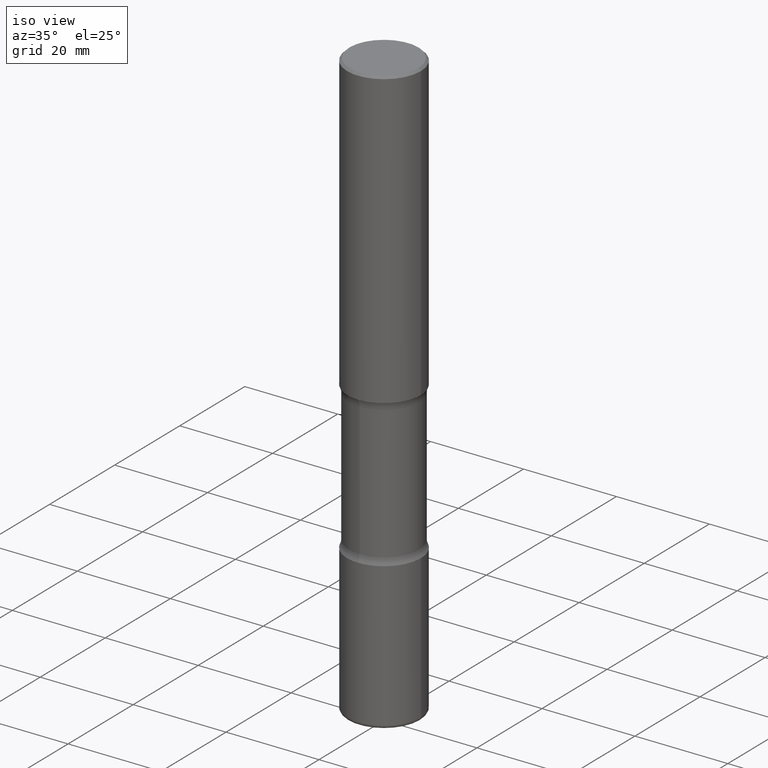
[diagram: clean part render]
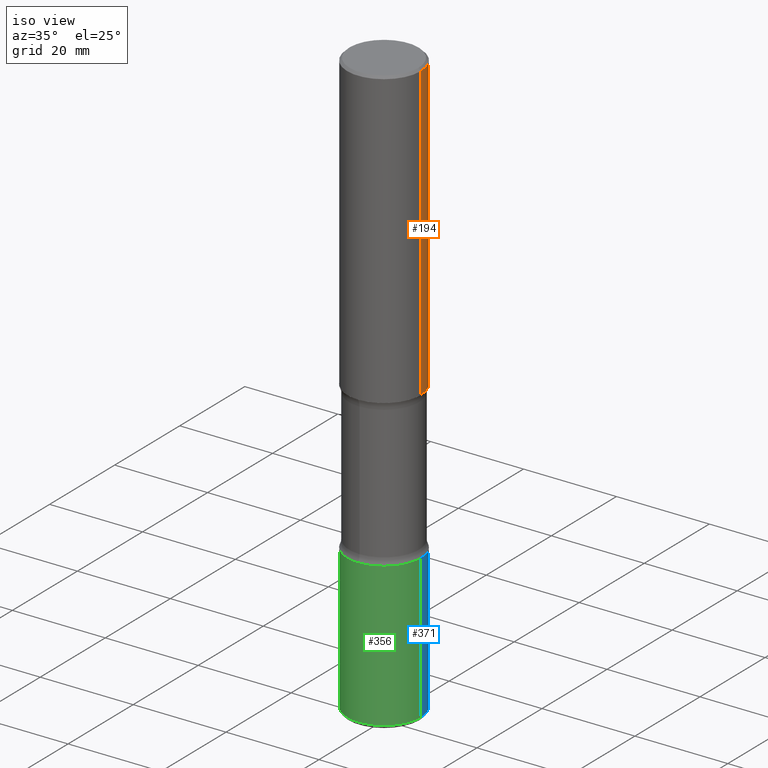
[diagram: same view with three faces highlighted in distinct colors, each labeled with its STEP entity id]
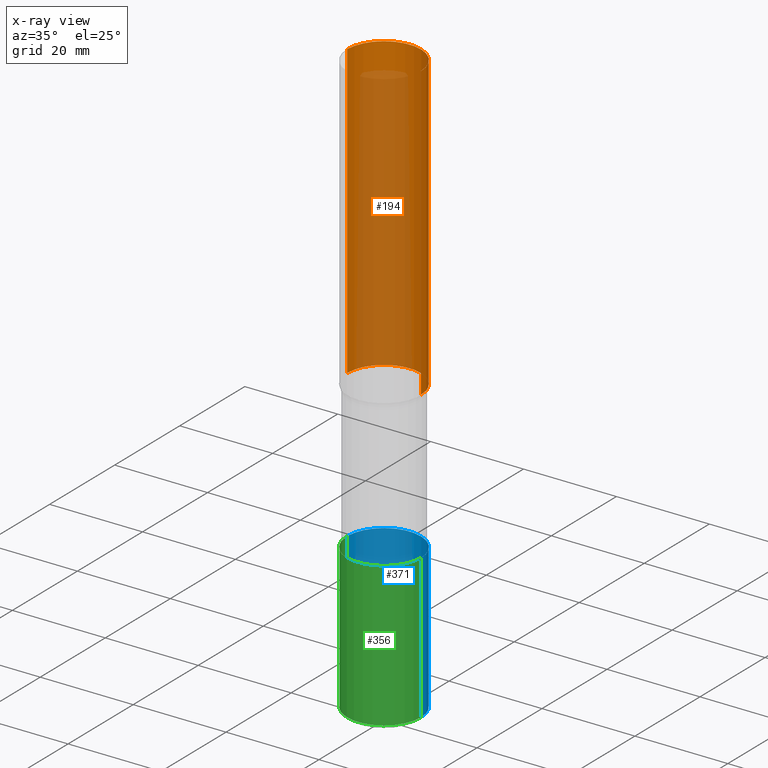
[diagram: x-ray of the same camera — body ghosted, the three highlighted faces saturated]
A machine part, iso view with three faces highlighted in distinct colors.
The next image is the same camera in x-ray (body ghosted, the three faces saturated) — at least one of them is partly hidden behind the body in this view.
Their STEP definitions:

[orange] entity #194 — the highlighted cylindrical surface (partial cylindrical patch) has radius 7.9375 mm, axis along (-0, 0, 1).
#7 = ORIENTED_EDGE ( 'NONE', *, *, #458, .F. ) ;
#16 = CARTESIAN_POINT ( 'NONE',  ( 0.3124999999999998890, -2.213735251080466123E-15, -0.02000000000000006981 ) ) ;
#32 = FACE_OUTER_BOUND ( 'NONE', #473, .T. ) ;
#34 = CARTESIAN_POINT ( 'NONE',  ( 0.000000000000000000, 0.000000000000000000, 0.000000000000000000 ) ) ;
#37 = VECTOR ( 'NONE', #305, 39.37007874015748143 ) ;
#43 = EDGE_CURVE ( 'NONE', #103, #52, #529, .T. ) ;
#52 = VERTEX_POINT ( 'NONE', #16 ) ;
#59 = CARTESIAN_POINT ( 'NONE',  ( -0.3125000000000002220, -2.178820437692046306E-15, -2.499999999999999556 ) ) ;
#93 = CARTESIAN_POINT ( 'NONE',  ( -0.3125000000000000000, 2.220446049250313081E-15, -1.537167215704658232E-29 ) ) ;
#103 = VERTEX_POINT ( 'NONE', #205 ) ;
#116 = AXIS2_PLACEMENT_3D ( 'NONE', #196, #153, #453 ) ;
#135 = AXIS2_PLACEMENT_3D ( 'NONE', #34, #203, #376 ) ;
#153 = DIRECTION ( 'NONE',  ( -2.445468806185136597E-29, 3.491481338843145583E-15, 1.000000000000000000 ) ) ;
#188 = ORIENTED_EDGE ( 'NONE', *, *, #43, .F. ) ;
#194 = ADVANCED_FACE ( 'NONE', ( #32 ), #334, .T. ) ;
#196 = CARTESIAN_POINT ( 'NONE',  ( 4.890937612370289799E-31, -6.982962677686315028E-17, -0.02000000000000006981 ) ) ;
#203 = DIRECTION ( 'NONE',  ( -2.445468806185136597E-29, 3.491481338843145583E-15, 1.000000000000000000 ) ) ;
#205 = CARTESIAN_POINT ( 'NONE',  ( 0.3125000000000002220, -1.091087918388482329E-14, -2.499999999999999556 ) ) ;
#230 = VERTEX_POINT ( 'NONE', #59 ) ;
#237 = CARTESIAN_POINT ( 'NONE',  ( 6.113672015462840371E-29, -8.728703347107863365E-15, -2.499999999999999556 ) ) ;
#263 = VECTOR ( 'NONE', #537, 39.37007874015748143 ) ;
#268 = EDGE_CURVE ( 'NONE', #230, #401, #353, .T. ) ;
#305 = DIRECTION ( 'NONE',  ( -2.445468806185136877E-29, 3.491481338843145188E-15, 1.000000000000000000 ) ) ;
#334 = CYLINDRICAL_SURFACE ( 'NONE', #135, 0.3125000000000000000 ) ;
#353 = LINE ( 'NONE', #93, #37 ) ;
#370 = CARTESIAN_POINT ( 'NONE',  ( 0.3125000000000000000, -2.182175836776958347E-15, 1.523805242436230075E-29 ) ) ;
#376 = DIRECTION ( 'NONE',  ( 1.000000000000000000, -6.982962677686266711E-15, 4.876176775795936353E-29 ) ) ;
#391 = CIRCLE ( 'NONE', #116, 0.3124999999999998890 ) ;
#401 = VERTEX_POINT ( 'NONE', #497 ) ;
#412 = DIRECTION ( 'NONE',  ( 1.000000000000000000, -6.982962677686266711E-15, 0.000000000000000000 ) ) ;
#431 = AXIS2_PLACEMENT_3D ( 'NONE', #237, #446, #412 ) ;
#446 = DIRECTION ( 'NONE',  ( -2.445468806185136597E-29, 3.491481338843145583E-15, 1.000000000000000000 ) ) ;
#453 = DIRECTION ( 'NONE',  ( 1.000000000000000000, -6.982962677686266711E-15, 0.000000000000000000 ) ) ;
#458 = EDGE_CURVE ( 'NONE', #52, #401, #391, .T. ) ;
#473 = EDGE_LOOP ( 'NONE', ( #476, #478, #7, #188 ) ) ;
#476 = ORIENTED_EDGE ( 'NONE', *, *, #488, .T. ) ;
#478 = ORIENTED_EDGE ( 'NONE', *, *, #268, .T. ) ;
#488 = EDGE_CURVE ( 'NONE', #103, #230, #547, .T. ) ;
#497 = CARTESIAN_POINT ( 'NONE',  ( -0.3124999999999998890, 2.112346210000094260E-15, -0.02000000000000006981 ) ) ;
#529 = LINE ( 'NONE', #370, #263 ) ;
#537 = DIRECTION ( 'NONE',  ( -2.445468806185136877E-29, 3.491481338843145188E-15, 1.000000000000000000 ) ) ;
#547 = CIRCLE ( 'NONE', #431, 0.3125000000000002220 ) ;

[blue] entity #371 — the highlighted cylindrical surface (partial cylindrical patch) has radius 7.9375 mm, axis along (-0, 0, 1).
#9 = EDGE_CURVE ( 'NONE', #425, #125, #460, .T. ) ;
#24 = EDGE_CURVE ( 'NONE', #520, #395, #144, .T. ) ;
#25 = DIRECTION ( 'NONE',  ( 1.000000000000000000, -6.982962677686266711E-15, 4.876176775795936353E-29 ) ) ;
#45 = ORIENTED_EDGE ( 'NONE', *, *, #9, .T. ) ;
#68 = CARTESIAN_POINT ( 'NONE',  ( 0.3125000000000007216, -1.953483809082739329E-14, -4.969999999999999751 ) ) ;
#119 = AXIS2_PLACEMENT_3D ( 'NONE', #496, #359, #318 ) ;
#125 = VERTEX_POINT ( 'NONE', #470 ) ;
#137 = LINE ( 'NONE', #350, #235 ) ;
#144 = CIRCLE ( 'NONE', #119, 0.3125000000000001665 ) ;
#150 = CARTESIAN_POINT ( 'NONE',  ( 0.000000000000000000, 0.000000000000000000, 0.000000000000000000 ) ) ;
#184 = EDGE_CURVE ( 'NONE', #125, #395, #519, .T. ) ;
#214 = DIRECTION ( 'NONE',  ( -2.445468806185136877E-29, 3.491481338843145188E-15, 1.000000000000000000 ) ) ;
#223 = EDGE_CURVE ( 'NONE', #425, #520, #137, .T. ) ;
#235 = VECTOR ( 'NONE', #315, 39.37007874015748143 ) ;
#239 = CARTESIAN_POINT ( 'NONE',  ( 0.3125000000000001665, -1.527523085743875418E-14, -3.749999999999999556 ) ) ;
#252 = VECTOR ( 'NONE', #214, 39.37007874015748143 ) ;
#262 = ORIENTED_EDGE ( 'NONE', *, *, #223, .F. ) ;
#276 = AXIS2_PLACEMENT_3D ( 'NONE', #326, #535, #447 ) ;
#307 = EDGE_LOOP ( 'NONE', ( #45, #393, #342, #262 ) ) ;
#315 = DIRECTION ( 'NONE',  ( -2.445468806185136877E-29, 3.491481338843145188E-15, 1.000000000000000000 ) ) ;
#318 = DIRECTION ( 'NONE',  ( 1.000000000000000000, -6.982962677686265133E-15, 0.000000000000000000 ) ) ;
#325 = FACE_OUTER_BOUND ( 'NONE', #307, .T. ) ;
#326 = CARTESIAN_POINT ( 'NONE',  ( 1.215397996674012835E-28, -1.735266225405043336E-14, -4.969999999999999751 ) ) ;
#342 = ORIENTED_EDGE ( 'NONE', *, *, #24, .F. ) ;
#344 = CARTESIAN_POINT ( 'NONE',  ( -0.3125000000000002776, 2.220446049250315053E-15, -1.537167215704659353E-29 ) ) ;
#350 = CARTESIAN_POINT ( 'NONE',  ( 0.3125000000000002776, -2.182175836776960319E-15, 1.523805242436231477E-29 ) ) ;
#359 = DIRECTION ( 'NONE',  ( -2.445468806185136597E-29, 3.491481338843145583E-15, 1.000000000000000000 ) ) ;
#371 = ADVANCED_FACE ( 'NONE', ( #325 ), #406, .T. ) ;
#393 = ORIENTED_EDGE ( 'NONE', *, *, #184, .T. ) ;
#395 = VERTEX_POINT ( 'NONE', #449 ) ;
#406 = CYLINDRICAL_SURFACE ( 'NONE', #513, 0.3125000000000002776 ) ;
#410 = DIRECTION ( 'NONE',  ( -2.445468806185136597E-29, 3.491481338843145583E-15, 1.000000000000000000 ) ) ;
#425 = VERTEX_POINT ( 'NONE', #68 ) ;
#447 = DIRECTION ( 'NONE',  ( 1.000000000000000000, -6.982962677686261977E-15, 0.000000000000000000 ) ) ;
#449 = CARTESIAN_POINT ( 'NONE',  ( -0.3125000000000001665, -1.300241258810579915E-14, -3.749999999999999556 ) ) ;
#460 = CIRCLE ( 'NONE', #276, 0.3125000000000003331 ) ;
#470 = CARTESIAN_POINT ( 'NONE',  ( -0.3125000000000007216, -1.513221620480011397E-14, -4.969999999999999751 ) ) ;
#496 = CARTESIAN_POINT ( 'NONE',  ( 9.170508023194261117E-29, -1.309305502066179584E-14, -3.749999999999999556 ) ) ;
#513 = AXIS2_PLACEMENT_3D ( 'NONE', #150, #410, #25 ) ;
#519 = LINE ( 'NONE', #344, #252 ) ;
#520 = VERTEX_POINT ( 'NONE', #239 ) ;
#535 = DIRECTION ( 'NONE',  ( -2.445468806185136597E-29, 3.491481338843145583E-15, 1.000000000000000000 ) ) ;

[green] entity #356 — the highlighted cylindrical surface (partial cylindrical patch) has radius 7.9375 mm, axis along (-0, 0, 1).
#41 = DIRECTION ( 'NONE',  ( -2.445468806185136597E-29, 3.491481338843145583E-15, 1.000000000000000000 ) ) ;
#44 = CARTESIAN_POINT ( 'NONE',  ( 9.170508023194261117E-29, -1.309305502066179584E-14, -3.749999999999999556 ) ) ;
#50 = DIRECTION ( 'NONE',  ( 1.000000000000000000, -6.982962677686266711E-15, 4.876176775795936353E-29 ) ) ;
#55 = EDGE_LOOP ( 'NONE', ( #522, #66, #91, #106 ) ) ;
#66 = ORIENTED_EDGE ( 'NONE', *, *, #122, .T. ) ;
#68 = CARTESIAN_POINT ( 'NONE',  ( 0.3125000000000007216, -1.953483809082739329E-14, -4.969999999999999751 ) ) ;
#91 = ORIENTED_EDGE ( 'NONE', *, *, #223, .T. ) ;
#106 = ORIENTED_EDGE ( 'NONE', *, *, #169, .F. ) ;
#122 = EDGE_CURVE ( 'NONE', #125, #425, #365, .T. ) ;
#125 = VERTEX_POINT ( 'NONE', #470 ) ;
#128 = DIRECTION ( 'NONE',  ( -2.445468806185136597E-29, 3.491481338843145583E-15, 1.000000000000000000 ) ) ;
#132 = FACE_OUTER_BOUND ( 'NONE', #55, .T. ) ;
#137 = LINE ( 'NONE', #350, #235 ) ;
#169 = EDGE_CURVE ( 'NONE', #395, #520, #472, .T. ) ;
#175 = CARTESIAN_POINT ( 'NONE',  ( 1.215397996674012835E-28, -1.735266225405043336E-14, -4.969999999999999751 ) ) ;
#184 = EDGE_CURVE ( 'NONE', #125, #395, #519, .T. ) ;
#190 = AXIS2_PLACEMENT_3D ( 'NONE', #44, #128, #419 ) ;
#214 = DIRECTION ( 'NONE',  ( -2.445468806185136877E-29, 3.491481338843145188E-15, 1.000000000000000000 ) ) ;
#223 = EDGE_CURVE ( 'NONE', #425, #520, #137, .T. ) ;
#235 = VECTOR ( 'NONE', #315, 39.37007874015748143 ) ;
#239 = CARTESIAN_POINT ( 'NONE',  ( 0.3125000000000001665, -1.527523085743875418E-14, -3.749999999999999556 ) ) ;
#252 = VECTOR ( 'NONE', #214, 39.37007874015748143 ) ;
#265 = CARTESIAN_POINT ( 'NONE',  ( 0.000000000000000000, 0.000000000000000000, 0.000000000000000000 ) ) ;
#274 = AXIS2_PLACEMENT_3D ( 'NONE', #175, #41, #340 ) ;
#308 = CYLINDRICAL_SURFACE ( 'NONE', #558, 0.3125000000000002776 ) ;
#315 = DIRECTION ( 'NONE',  ( -2.445468806185136877E-29, 3.491481338843145188E-15, 1.000000000000000000 ) ) ;
#340 = DIRECTION ( 'NONE',  ( 1.000000000000000000, -6.982962677686261977E-15, 0.000000000000000000 ) ) ;
#344 = CARTESIAN_POINT ( 'NONE',  ( -0.3125000000000002776, 2.220446049250315053E-15, -1.537167215704659353E-29 ) ) ;
#350 = CARTESIAN_POINT ( 'NONE',  ( 0.3125000000000002776, -2.182175836776960319E-15, 1.523805242436231477E-29 ) ) ;
#356 = ADVANCED_FACE ( 'NONE', ( #132 ), #308, .T. ) ;
#365 = CIRCLE ( 'NONE', #274, 0.3125000000000003331 ) ;
#395 = VERTEX_POINT ( 'NONE', #449 ) ;
#419 = DIRECTION ( 'NONE',  ( 1.000000000000000000, -6.982962677686265133E-15, 0.000000000000000000 ) ) ;
#425 = VERTEX_POINT ( 'NONE', #68 ) ;
#434 = DIRECTION ( 'NONE',  ( -2.445468806185136597E-29, 3.491481338843145583E-15, 1.000000000000000000 ) ) ;
#449 = CARTESIAN_POINT ( 'NONE',  ( -0.3125000000000001665, -1.300241258810579915E-14, -3.749999999999999556 ) ) ;
#470 = CARTESIAN_POINT ( 'NONE',  ( -0.3125000000000007216, -1.513221620480011397E-14, -4.969999999999999751 ) ) ;
#472 = CIRCLE ( 'NONE', #190, 0.3125000000000001665 ) ;
#519 = LINE ( 'NONE', #344, #252 ) ;
#520 = VERTEX_POINT ( 'NONE', #239 ) ;
#522 = ORIENTED_EDGE ( 'NONE', *, *, #184, .F. ) ;
#558 = AXIS2_PLACEMENT_3D ( 'NONE', #265, #434, #50 ) ;